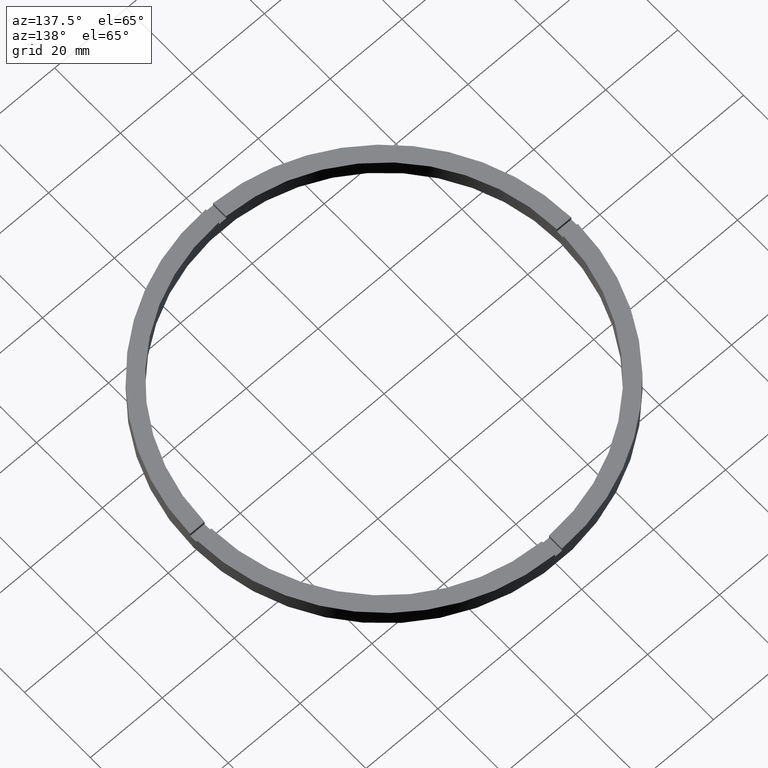
[diagram: clean part render]
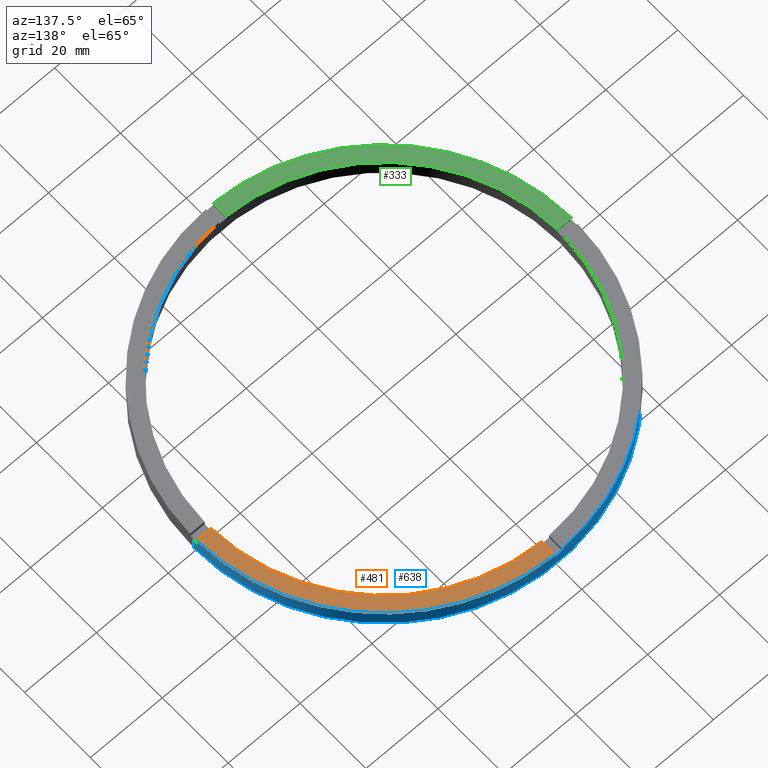
[diagram: same view with three faces highlighted in distinct colors, each labeled with its STEP entity id]
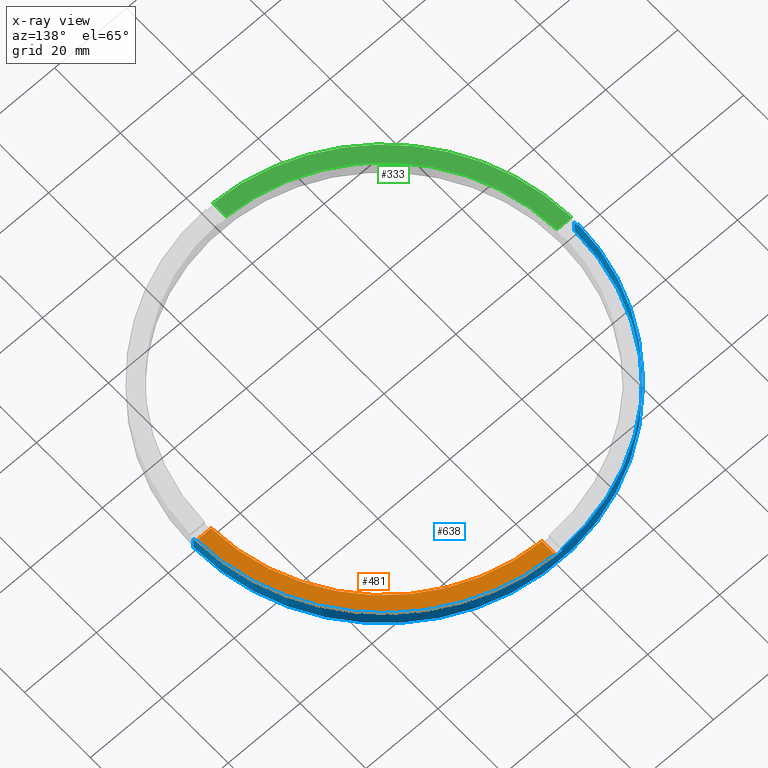
[diagram: x-ray of the same camera — body ghosted, the three highlighted faces saturated]
A machine part, auxiliary view with three faces highlighted in distinct colors.
The next image is the same camera in x-ray (body ghosted, the three faces saturated) — at least one of them is partly hidden behind the body in this view.
Their STEP definitions:

[orange] entity #481 — the highlighted planar face has unit normal (0, 0, 1).
#3 = CARTESIAN_POINT ( 'NONE',  ( 0.000000000000000000, 0.000000000000000000, 5.000000000000000000 ) ) ;
#6 = DIRECTION ( 'NONE',  ( 0.000000000000000000, 0.000000000000000000, 1.000000000000000000 ) ) ;
#15 = EDGE_CURVE ( 'NONE', #727, #710, #674, .T. ) ;
#26 = FACE_OUTER_BOUND ( 'NONE', #478, .T. ) ;
#34 = CIRCLE ( 'NONE', #448, 53.00000000000000711 ) ;
#42 = CIRCLE ( 'NONE', #424, 49.00000000000000000 ) ;
#50 = VECTOR ( 'NONE', #325, 1000.000000000000000 ) ;
#56 = AXIS2_PLACEMENT_3D ( 'NONE', #700, #226, #773 ) ;
#114 = DIRECTION ( 'NONE',  ( 1.000000000000000000, 0.000000000000000000, 0.000000000000000000 ) ) ;
#124 = CARTESIAN_POINT ( 'NONE',  ( 0.9999999999999729106, 48.98979485566356118, 5.000000000000000000 ) ) ;
#151 = VECTOR ( 'NONE', #283, 1000.000000000000000 ) ;
#175 = ORIENTED_EDGE ( 'NONE', *, *, #276, .F. ) ;
#189 = ORIENTED_EDGE ( 'NONE', *, *, #525, .T. ) ;
#194 = VERTEX_POINT ( 'NONE', #124 ) ;
#216 = ORIENTED_EDGE ( 'NONE', *, *, #278, .F. ) ;
#226 = DIRECTION ( 'NONE',  ( 0.000000000000000000, 0.000000000000000000, 1.000000000000000000 ) ) ;
#276 = EDGE_CURVE ( 'NONE', #194, #767, #550, .T. ) ;
#278 = EDGE_CURVE ( 'NONE', #710, #194, #42, .T. ) ;
#283 = DIRECTION ( 'NONE',  ( -1.000000000000000000, -6.505213034913025371E-17, -0.000000000000000000 ) ) ;
#325 = DIRECTION ( 'NONE',  ( 0.000000000000000000, 1.000000000000000000, 0.000000000000000000 ) ) ;
#367 = CARTESIAN_POINT ( 'NONE',  ( 52.99056519796709352, 0.9999999999998454570, 5.000000000000000000 ) ) ;
#374 = CARTESIAN_POINT ( 'NONE',  ( 48.98979485566356828, 0.9999999999998452349, 5.000000000000000000 ) ) ;
#424 = AXIS2_PLACEMENT_3D ( 'NONE', #774, #758, #114 ) ;
#448 = AXIS2_PLACEMENT_3D ( 'NONE', #3, #6, #534 ) ;
#478 = EDGE_LOOP ( 'NONE', ( #175, #216, #687, #189 ) ) ;
#481 = ADVANCED_FACE ( 'NONE', ( #26 ), #583, .T. ) ;
#513 = CARTESIAN_POINT ( 'NONE',  ( 0.9999999999999729106, 52.99056519796708642, 5.000000000000000000 ) ) ;
#525 = EDGE_CURVE ( 'NONE', #727, #767, #34, .T. ) ;
#534 = DIRECTION ( 'NONE',  ( 1.000000000000000000, 0.000000000000000000, 0.000000000000000000 ) ) ;
#550 = LINE ( 'NONE', #676, #50 ) ;
#583 = PLANE ( 'NONE',  #56 ) ;
#587 = CARTESIAN_POINT ( 'NONE',  ( 43.00000000000000000, 0.9999999999998447908, 5.000000000000000000 ) ) ;
#674 = LINE ( 'NONE', #587, #151 ) ;
#676 = CARTESIAN_POINT ( 'NONE',  ( 0.9999999999999729106, 43.00000000000000000, 5.000000000000000000 ) ) ;
#687 = ORIENTED_EDGE ( 'NONE', *, *, #15, .F. ) ;
#700 = CARTESIAN_POINT ( 'NONE',  ( 0.000000000000000000, 0.000000000000000000, 5.000000000000000000 ) ) ;
#710 = VERTEX_POINT ( 'NONE', #374 ) ;
#727 = VERTEX_POINT ( 'NONE', #367 ) ;
#758 = DIRECTION ( 'NONE',  ( 0.000000000000000000, 0.000000000000000000, 1.000000000000000000 ) ) ;
#767 = VERTEX_POINT ( 'NONE', #513 ) ;
#773 = DIRECTION ( 'NONE',  ( 1.000000000000000000, 0.000000000000000000, -0.000000000000000000 ) ) ;
#774 = CARTESIAN_POINT ( 'NONE',  ( 0.000000000000000000, 0.000000000000000000, 5.000000000000000000 ) ) ;

[blue] entity #638 — the highlighted cylindrical surface (partial cylindrical patch) has radius 53 mm, axis along (-0, -0, -1).
#2 = EDGE_CURVE ( 'NONE', #709, #726, #422, .T. ) ;
#3 = CARTESIAN_POINT ( 'NONE',  ( 0.000000000000000000, 0.000000000000000000, 5.000000000000000000 ) ) ;
#6 = DIRECTION ( 'NONE',  ( 0.000000000000000000, 0.000000000000000000, 1.000000000000000000 ) ) ;
#7 = CARTESIAN_POINT ( 'NONE',  ( 0.9999999999999729106, 52.99056519796708642, 4.000000000000000000 ) ) ;
#10 = CARTESIAN_POINT ( 'NONE',  ( -52.99056519796708642, 0.9999999999999676925, 5.000000000000000000 ) ) ;
#22 = EDGE_CURVE ( 'NONE', #724, #767, #628, .T. ) ;
#34 = CIRCLE ( 'NONE', #448, 53.00000000000000711 ) ;
#35 = LINE ( 'NONE', #782, #289 ) ;
#36 = LINE ( 'NONE', #712, #581 ) ;
#37 = AXIS2_PLACEMENT_3D ( 'NONE', #515, #383, #386 ) ;
#41 = CIRCLE ( 'NONE', #302, 53.00000000000000711 ) ;
#48 = CIRCLE ( 'NONE', #622, 53.00000000000000711 ) ;
#63 = LINE ( 'NONE', #361, #590 ) ;
#71 = FACE_OUTER_BOUND ( 'NONE', #199, .T. ) ;
#79 = CARTESIAN_POINT ( 'NONE',  ( 0.000000000000000000, 0.000000000000000000, 0.000000000000000000 ) ) ;
#99 = EDGE_CURVE ( 'NONE', #724, #415, #613, .T. ) ;
#105 = DIRECTION ( 'NONE',  ( -0.000000000000000000, -0.000000000000000000, -1.000000000000000000 ) ) ;
#106 = DIRECTION ( 'NONE',  ( -0.000000000000000000, -0.000000000000000000, -1.000000000000000000 ) ) ;
#111 = CARTESIAN_POINT ( 'NONE',  ( -53.00000000000000711, 0.000000000000000000, 0.000000000000000000 ) ) ;
#139 = ORIENTED_EDGE ( 'NONE', *, *, #22, .T. ) ;
#140 = AXIS2_PLACEMENT_3D ( 'NONE', #79, #768, #680 ) ;
#149 = ORIENTED_EDGE ( 'NONE', *, *, #525, .F. ) ;
#176 = ORIENTED_EDGE ( 'NONE', *, *, #99, .F. ) ;
#192 = ORIENTED_EDGE ( 'NONE', *, *, #296, .F. ) ;
#199 = EDGE_LOOP ( 'NONE', ( #192, #718, #717, #426, #661, #453, #706, #748, #176, #139, #149, #681 ) ) ;
#224 = VERTEX_POINT ( 'NONE', #227 ) ;
#227 = CARTESIAN_POINT ( 'NONE',  ( 53.00000000000000711, 6.490628035480973107E-15, 0.000000000000000000 ) ) ;
#241 = CARTESIAN_POINT ( 'NONE',  ( 0.000000000000000000, 0.000000000000000000, 5.000000000000000000 ) ) ;
#242 = CARTESIAN_POINT ( 'NONE',  ( -52.99056519796708642, 0.9999999999999676925, 5.000000000000000000 ) ) ;
#258 = CARTESIAN_POINT ( 'NONE',  ( -53.00000000000000711, 0.000000000000000000, 5.000000000000000000 ) ) ;
#270 = CARTESIAN_POINT ( 'NONE',  ( 53.00000000000000711, 6.490628035480973107E-15, 4.000000000000000000 ) ) ;
#273 = DIRECTION ( 'NONE',  ( 1.000000000000000000, 0.000000000000000000, 0.000000000000000000 ) ) ;
#282 = DIRECTION ( 'NONE',  ( 1.000000000000000000, 0.000000000000000000, 0.000000000000000000 ) ) ;
#289 = VECTOR ( 'NONE', #105, 1000.000000000000000 ) ;
#296 = EDGE_CURVE ( 'NONE', #469, #650, #41, .T. ) ;
#302 = AXIS2_PLACEMENT_3D ( 'NONE', #544, #387, #765 ) ;
#304 = LINE ( 'NONE', #258, #307 ) ;
#305 = EDGE_CURVE ( 'NONE', #451, #771, #304, .T. ) ;
#307 = VECTOR ( 'NONE', #558, 1000.000000000000000 ) ;
#322 = CARTESIAN_POINT ( 'NONE',  ( -1.000000000000027089, 52.99056519796708642, 5.000000000000000000 ) ) ;
#326 = DIRECTION ( 'NONE',  ( 0.000000000000000000, -0.000000000000000000, 1.000000000000000000 ) ) ;
#343 = DIRECTION ( 'NONE',  ( 0.000000000000000000, 0.000000000000000000, 1.000000000000000000 ) ) ;
#353 = CYLINDRICAL_SURFACE ( 'NONE', #37, 53.00000000000000711 ) ;
#361 = CARTESIAN_POINT ( 'NONE',  ( 52.99056519796709352, 0.9999999999998454570, 5.000000000000000000 ) ) ;
#367 = CARTESIAN_POINT ( 'NONE',  ( 52.99056519796709352, 0.9999999999998454570, 5.000000000000000000 ) ) ;
#376 = EDGE_CURVE ( 'NONE', #709, #451, #577, .T. ) ;
#380 = DIRECTION ( 'NONE',  ( 0.000000000000000000, 0.000000000000000000, 1.000000000000000000 ) ) ;
#383 = DIRECTION ( 'NONE',  ( -0.000000000000000000, -0.000000000000000000, -1.000000000000000000 ) ) ;
#386 = DIRECTION ( 'NONE',  ( -1.000000000000000000, 0.000000000000000000, 0.000000000000000000 ) ) ;
#387 = DIRECTION ( 'NONE',  ( 0.000000000000000000, 0.000000000000000000, 1.000000000000000000 ) ) ;
#395 = CARTESIAN_POINT ( 'NONE',  ( 0.000000000000000000, 0.000000000000000000, 4.000000000000000000 ) ) ;
#415 = VERTEX_POINT ( 'NONE', #591 ) ;
#422 = LINE ( 'NONE', #242, #679 ) ;
#426 = ORIENTED_EDGE ( 'NONE', *, *, #305, .F. ) ;
#445 = DIRECTION ( 'NONE',  ( 1.000000000000000000, 0.000000000000000000, 0.000000000000000000 ) ) ;
#448 = AXIS2_PLACEMENT_3D ( 'NONE', #3, #6, #534 ) ;
#451 = VERTEX_POINT ( 'NONE', #457 ) ;
#453 = ORIENTED_EDGE ( 'NONE', *, *, #2, .T. ) ;
#454 = CARTESIAN_POINT ( 'NONE',  ( 52.99056519796709352, 0.9999999999998454570, 4.000000000000000000 ) ) ;
#456 = EDGE_CURVE ( 'NONE', #664, #415, #36, .T. ) ;
#457 = CARTESIAN_POINT ( 'NONE',  ( -53.00000000000000711, 0.000000000000000000, 4.000000000000000000 ) ) ;
#469 = VERTEX_POINT ( 'NONE', #270 ) ;
#480 = DIRECTION ( 'NONE',  ( 0.000000000000000000, 0.000000000000000000, 1.000000000000000000 ) ) ;
#487 = CARTESIAN_POINT ( 'NONE',  ( 0.9999999999999729106, 52.99056519796708642, 5.000000000000000000 ) ) ;
#512 = AXIS2_PLACEMENT_3D ( 'NONE', #693, #380, #445 ) ;
#513 = CARTESIAN_POINT ( 'NONE',  ( 0.9999999999999729106, 52.99056519796708642, 5.000000000000000000 ) ) ;
#515 = CARTESIAN_POINT ( 'NONE',  ( 0.000000000000000000, 0.000000000000000000, 5.000000000000000000 ) ) ;
#525 = EDGE_CURVE ( 'NONE', #727, #767, #34, .T. ) ;
#527 = EDGE_CURVE ( 'NONE', #469, #224, #35, .T. ) ;
#529 = DIRECTION ( 'NONE',  ( 0.000000000000000000, 0.000000000000000000, 1.000000000000000000 ) ) ;
#534 = DIRECTION ( 'NONE',  ( 1.000000000000000000, 0.000000000000000000, 0.000000000000000000 ) ) ;
#544 = CARTESIAN_POINT ( 'NONE',  ( 0.000000000000000000, 0.000000000000000000, 4.000000000000000000 ) ) ;
#558 = DIRECTION ( 'NONE',  ( -0.000000000000000000, -0.000000000000000000, -1.000000000000000000 ) ) ;
#577 = CIRCLE ( 'NONE', #512, 53.00000000000000711 ) ;
#581 = VECTOR ( 'NONE', #775, 1000.000000000000000 ) ;
#589 = EDGE_CURVE ( 'NONE', #664, #726, #48, .T. ) ;
#590 = VECTOR ( 'NONE', #106, 1000.000000000000000 ) ;
#591 = CARTESIAN_POINT ( 'NONE',  ( -1.000000000000027089, 52.99056519796708642, 4.000000000000000000 ) ) ;
#604 = CIRCLE ( 'NONE', #140, 53.00000000000000711 ) ;
#606 = CARTESIAN_POINT ( 'NONE',  ( -52.99056519796708642, 0.9999999999999676925, 4.000000000000000000 ) ) ;
#613 = CIRCLE ( 'NONE', #753, 53.00000000000000711 ) ;
#619 = VECTOR ( 'NONE', #343, 1000.000000000000000 ) ;
#622 = AXIS2_PLACEMENT_3D ( 'NONE', #241, #529, #282 ) ;
#628 = LINE ( 'NONE', #487, #619 ) ;
#634 = EDGE_CURVE ( 'NONE', #224, #771, #604, .T. ) ;
#638 = ADVANCED_FACE ( 'NONE', ( #71 ), #353, .T. ) ;
#650 = VERTEX_POINT ( 'NONE', #454 ) ;
#661 = ORIENTED_EDGE ( 'NONE', *, *, #376, .F. ) ;
#664 = VERTEX_POINT ( 'NONE', #322 ) ;
#679 = VECTOR ( 'NONE', #480, 1000.000000000000000 ) ;
#680 = DIRECTION ( 'NONE',  ( 1.000000000000000000, 0.000000000000000000, 0.000000000000000000 ) ) ;
#681 = ORIENTED_EDGE ( 'NONE', *, *, #714, .T. ) ;
#693 = CARTESIAN_POINT ( 'NONE',  ( 0.000000000000000000, 0.000000000000000000, 4.000000000000000000 ) ) ;
#706 = ORIENTED_EDGE ( 'NONE', *, *, #589, .F. ) ;
#709 = VERTEX_POINT ( 'NONE', #606 ) ;
#712 = CARTESIAN_POINT ( 'NONE',  ( -1.000000000000027089, 52.99056519796708642, 5.000000000000000000 ) ) ;
#714 = EDGE_CURVE ( 'NONE', #727, #650, #63, .T. ) ;
#717 = ORIENTED_EDGE ( 'NONE', *, *, #634, .T. ) ;
#718 = ORIENTED_EDGE ( 'NONE', *, *, #527, .T. ) ;
#724 = VERTEX_POINT ( 'NONE', #7 ) ;
#726 = VERTEX_POINT ( 'NONE', #10 ) ;
#727 = VERTEX_POINT ( 'NONE', #367 ) ;
#748 = ORIENTED_EDGE ( 'NONE', *, *, #456, .T. ) ;
#753 = AXIS2_PLACEMENT_3D ( 'NONE', #395, #326, #273 ) ;
#765 = DIRECTION ( 'NONE',  ( 1.000000000000000000, 0.000000000000000000, 0.000000000000000000 ) ) ;
#767 = VERTEX_POINT ( 'NONE', #513 ) ;
#768 = DIRECTION ( 'NONE',  ( 0.000000000000000000, 0.000000000000000000, 1.000000000000000000 ) ) ;
#771 = VERTEX_POINT ( 'NONE', #111 ) ;
#775 = DIRECTION ( 'NONE',  ( -0.000000000000000000, -0.000000000000000000, -1.000000000000000000 ) ) ;
#782 = CARTESIAN_POINT ( 'NONE',  ( 53.00000000000000711, 6.490628035480973107E-15, 5.000000000000000000 ) ) ;

[green] entity #333 — the highlighted planar face has unit normal (0, 0, 1).
#5 = CARTESIAN_POINT ( 'NONE',  ( 0.000000000000000000, 0.000000000000000000, 5.000000000000000000 ) ) ;
#18 = CARTESIAN_POINT ( 'NONE',  ( -1.000000000000156097, -52.99056519796708642, 5.000000000000000000 ) ) ;
#19 = CARTESIAN_POINT ( 'NONE',  ( -52.99056519796708642, -1.000000000000032419, 5.000000000000000000 ) ) ;
#21 = CARTESIAN_POINT ( 'NONE',  ( -43.00000000000019185, -1.000000000000030420, 5.000000000000000000 ) ) ;
#30 = FACE_OUTER_BOUND ( 'NONE', #222, .T. ) ;
#44 = DIRECTION ( 'NONE',  ( 1.301042606982605074E-16, -1.000000000000000000, 0.000000000000000000 ) ) ;
#67 = CIRCLE ( 'NONE', #538, 53.00000000000000711 ) ;
#81 = DIRECTION ( 'NONE',  ( 1.000000000000000000, 1.951563910473907735E-16, -0.000000000000000000 ) ) ;
#122 = DIRECTION ( 'NONE',  ( 1.000000000000000000, 0.000000000000000000, -0.000000000000000000 ) ) ;
#150 = VERTEX_POINT ( 'NONE', #18 ) ;
#177 = DIRECTION ( 'NONE',  ( 1.000000000000000000, 0.000000000000000000, 0.000000000000000000 ) ) ;
#180 = DIRECTION ( 'NONE',  ( 0.000000000000000000, 0.000000000000000000, 1.000000000000000000 ) ) ;
#221 = EDGE_CURVE ( 'NONE', #659, #705, #368, .T. ) ;
#222 = EDGE_LOOP ( 'NONE', ( #675, #431, #719, #452 ) ) ;
#232 = CARTESIAN_POINT ( 'NONE',  ( -1.000000000000157430, -43.00000000000018474, 5.000000000000000000 ) ) ;
#249 = DIRECTION ( 'NONE',  ( 0.000000000000000000, 0.000000000000000000, 1.000000000000000000 ) ) ;
#267 = PLANE ( 'NONE',  #346 ) ;
#288 = CARTESIAN_POINT ( 'NONE',  ( 0.000000000000000000, 0.000000000000000000, 5.000000000000000000 ) ) ;
#292 = VECTOR ( 'NONE', #44, 1000.000000000000000 ) ;
#317 = LINE ( 'NONE', #232, #292 ) ;
#333 = ADVANCED_FACE ( 'NONE', ( #30 ), #267, .T. ) ;
#341 = AXIS2_PLACEMENT_3D ( 'NONE', #5, #249, #177 ) ;
#346 = AXIS2_PLACEMENT_3D ( 'NONE', #519, #392, #122 ) ;
#368 = LINE ( 'NONE', #21, #624 ) ;
#392 = DIRECTION ( 'NONE',  ( 0.000000000000000000, 0.000000000000000000, 1.000000000000000000 ) ) ;
#427 = EDGE_CURVE ( 'NONE', #672, #150, #317, .T. ) ;
#431 = ORIENTED_EDGE ( 'NONE', *, *, #509, .F. ) ;
#450 = CARTESIAN_POINT ( 'NONE',  ( -1.000000000000156763, -48.98979485566356118, 5.000000000000000000 ) ) ;
#452 = ORIENTED_EDGE ( 'NONE', *, *, #707, .T. ) ;
#509 = EDGE_CURVE ( 'NONE', #705, #672, #568, .T. ) ;
#519 = CARTESIAN_POINT ( 'NONE',  ( 0.000000000000000000, 0.000000000000000000, 5.000000000000000000 ) ) ;
#538 = AXIS2_PLACEMENT_3D ( 'NONE', #288, #180, #618 ) ;
#568 = CIRCLE ( 'NONE', #341, 49.00000000000000000 ) ;
#612 = CARTESIAN_POINT ( 'NONE',  ( -48.98979485566356118, -1.000000000000031530, 5.000000000000000000 ) ) ;
#618 = DIRECTION ( 'NONE',  ( 1.000000000000000000, 0.000000000000000000, 0.000000000000000000 ) ) ;
#624 = VECTOR ( 'NONE', #81, 1000.000000000000000 ) ;
#659 = VERTEX_POINT ( 'NONE', #19 ) ;
#672 = VERTEX_POINT ( 'NONE', #450 ) ;
#675 = ORIENTED_EDGE ( 'NONE', *, *, #427, .F. ) ;
#705 = VERTEX_POINT ( 'NONE', #612 ) ;
#707 = EDGE_CURVE ( 'NONE', #659, #150, #67, .T. ) ;
#719 = ORIENTED_EDGE ( 'NONE', *, *, #221, .F. ) ;